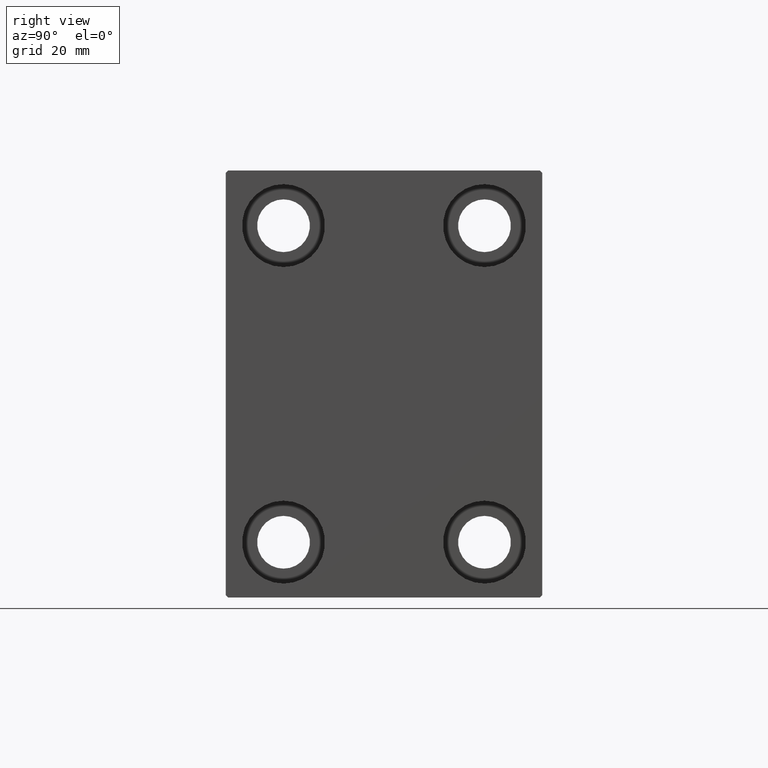
[diagram: clean part render]
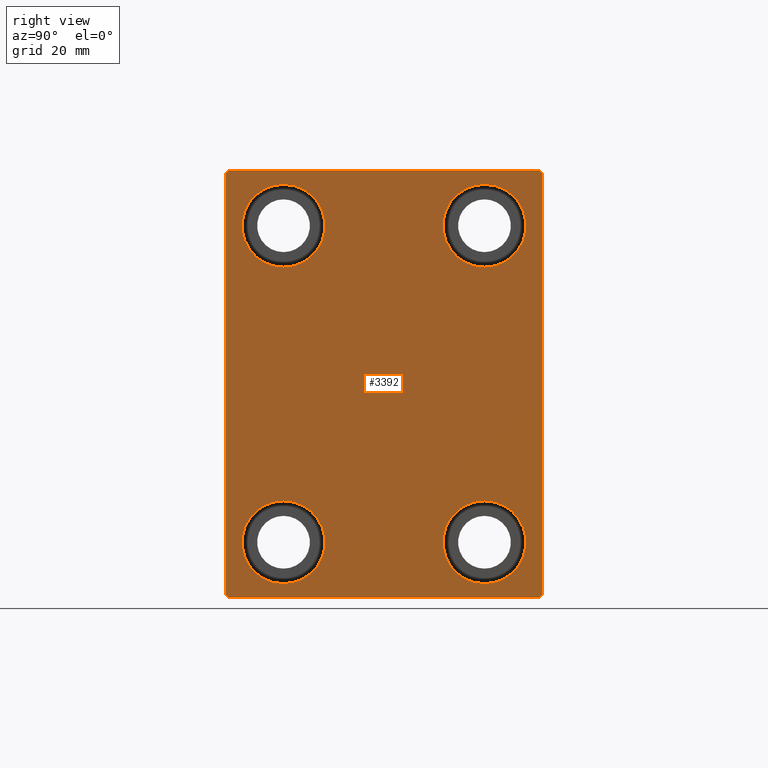
[diagram: same view with one face highlighted and labeled with its STEP entity id]
A machine part, right view. The second image highlights one B-rep face of the part: STEP entity #3392.
In plain terms, the highlighted planar face has unit normal (1, 0, 0).
Its self-contained STEP definition (entity closure, byte-faithful):
#448 = LINE ( 'NONE', #14216, #34488 ) ;
#698 = DIRECTION ( 'NONE',  ( 0.000000000000000000, 0.000000000000000000, 1.000000000000000000 ) ) ;
#2405 = ORIENTED_EDGE ( 'NONE', *, *, #10551, .T. ) ;
#2633 = EDGE_CURVE ( 'NONE', #10089, #28254, #25687, .T. ) ;
#3216 = LINE ( 'NONE', #33450, #33246 ) ;
#3392 = ADVANCED_FACE ( 'NONE', ( #31100, #14204, #27771, #11472, #25023 ), #38613, .T. ) ;
#4248 = DIRECTION ( 'NONE',  ( -1.000000000000000000, -0.000000000000000000, -0.000000000000000000 ) ) ;
#4383 = ORIENTED_EDGE ( 'NONE', *, *, #37779, .T. ) ;
#4405 = CARTESIAN_POINT ( 'NONE',  ( 88.00000000000000000, -19.99999999999999645, 23.25000000000000355 ) ) ;
#4708 = CIRCLE ( 'NONE', #40938, 8.250000000000000000 ) ;
#4810 = DIRECTION ( 'NONE',  ( 0.000000000000000000, 0.000000000000000000, -1.000000000000000000 ) ) ;
#5576 = EDGE_LOOP ( 'NONE', ( #43791, #18292 ) ) ;
#5767 = CARTESIAN_POINT ( 'NONE',  ( 88.00000000000000000, -31.50000000000000000, 41.99999999999999289 ) ) ;
#6165 = EDGE_CURVE ( 'NONE', #13668, #19297, #4708, .T. ) ;
#6616 = ORIENTED_EDGE ( 'NONE', *, *, #23569, .T. ) ;
#7251 = LINE ( 'NONE', #27262, #25664 ) ;
#7288 = CIRCLE ( 'NONE', #21461, 8.250000000000000000 ) ;
#7803 = VERTEX_POINT ( 'NONE', #14889 ) ;
#8357 = VECTOR ( 'NONE', #39115, 1000.000000000000000 ) ;
#8396 = CARTESIAN_POINT ( 'NONE',  ( 88.00000000000000000, 19.99999999999999645, -31.49999999999999289 ) ) ;
#8635 = DIRECTION ( 'NONE',  ( 0.000000000000000000, 0.000000000000000000, -1.000000000000000000 ) ) ;
#9168 = ORIENTED_EDGE ( 'NONE', *, *, #29551, .T. ) ;
#10033 = CARTESIAN_POINT ( 'NONE',  ( 88.00000000000000000, 19.99999999999999645, -23.24999999999999289 ) ) ;
#10089 = VERTEX_POINT ( 'NONE', #11914 ) ;
#10105 = DIRECTION ( 'NONE',  ( -0.000000000000000000, 0.7071067811865573427, -0.7071067811865378028 ) ) ;
#10325 = EDGE_CURVE ( 'NONE', #26020, #11963, #19568, .T. ) ;
#10328 = DIRECTION ( 'NONE',  ( 0.000000000000000000, 0.000000000000000000, 1.000000000000000000 ) ) ;
#10464 = EDGE_CURVE ( 'NONE', #24582, #36181, #448, .T. ) ;
#10551 = EDGE_CURVE ( 'NONE', #36181, #35749, #21765, .T. ) ;
#10630 = DIRECTION ( 'NONE',  ( 0.000000000000000000, 0.000000000000000000, 1.000000000000000000 ) ) ;
#10774 = CIRCLE ( 'NONE', #37019, 8.249999999999992895 ) ;
#11472 = FACE_BOUND ( 'NONE', #5576, .T. ) ;
#11722 = DIRECTION ( 'NONE',  ( -1.000000000000000000, -0.000000000000000000, -0.000000000000000000 ) ) ;
#11781 = VERTEX_POINT ( 'NONE', #41972 ) ;
#11914 = CARTESIAN_POINT ( 'NONE',  ( 88.00000000000000000, -31.00000000000000000, -42.50000000000000711 ) ) ;
#11963 = VERTEX_POINT ( 'NONE', #15430 ) ;
#12589 = ORIENTED_EDGE ( 'NONE', *, *, #2633, .T. ) ;
#12839 = AXIS2_PLACEMENT_3D ( 'NONE', #31141, #4248, #698 ) ;
#12922 = DIRECTION ( 'NONE',  ( -1.000000000000000000, -0.000000000000000000, -0.000000000000000000 ) ) ;
#13192 = VECTOR ( 'NONE', #35323, 1000.000000000000000 ) ;
#13668 = VERTEX_POINT ( 'NONE', #27906 ) ;
#13960 = DIRECTION ( 'NONE',  ( -1.000000000000000000, -0.000000000000000000, -0.000000000000000000 ) ) ;
#14077 = VERTEX_POINT ( 'NONE', #4405 ) ;
#14204 = FACE_BOUND ( 'NONE', #18291, .T. ) ;
#14216 = CARTESIAN_POINT ( 'NONE',  ( 88.00000000000000000, 31.50000000000000000, 42.50000000000000711 ) ) ;
#14383 = AXIS2_PLACEMENT_3D ( 'NONE', #33154, #12922, #26496 ) ;
#14624 = AXIS2_PLACEMENT_3D ( 'NONE', #33349, #29578, #40047 ) ;
#14889 = CARTESIAN_POINT ( 'NONE',  ( 88.00000000000000000, -20.00000000000000355, -39.74999999999999289 ) ) ;
#15050 = DIRECTION ( 'NONE',  ( 0.000000000000000000, 0.000000000000000000, 1.000000000000000000 ) ) ;
#15430 = CARTESIAN_POINT ( 'NONE',  ( 88.00000000000000000, 20.00000000000000355, 39.74999999999999289 ) ) ;
#15628 = DIRECTION ( 'NONE',  ( -1.000000000000000000, -0.000000000000000000, -0.000000000000000000 ) ) ;
#15633 = EDGE_CURVE ( 'NONE', #42857, #33414, #39559, .T. ) ;
#16173 = CARTESIAN_POINT ( 'NONE',  ( 88.00000000000000000, 31.50000000000001421, -42.50000000000000711 ) ) ;
#16819 = EDGE_CURVE ( 'NONE', #22340, #10089, #3216, .T. ) ;
#16854 = DIRECTION ( 'NONE',  ( -0.000000000000000000, 0.7071067811865378028, 0.7071067811865573427 ) ) ;
#17936 = CIRCLE ( 'NONE', #14383, 8.250000000000000000 ) ;
#18120 = VECTOR ( 'NONE', #32135, 1000.000000000000000 ) ;
#18180 = CARTESIAN_POINT ( 'NONE',  ( 88.00000000000000000, -31.50000000000000000, 42.49999999999999289 ) ) ;
#18291 = EDGE_LOOP ( 'NONE', ( #9168, #43781 ) ) ;
#18292 = ORIENTED_EDGE ( 'NONE', *, *, #25979, .T. ) ;
#18426 = CARTESIAN_POINT ( 'NONE',  ( 88.00000000000000000, -36.75000000000044054, 36.74999999999942446 ) ) ;
#19224 = ORIENTED_EDGE ( 'NONE', *, *, #32085, .T. ) ;
#19297 = VERTEX_POINT ( 'NONE', #10033 ) ;
#19568 = CIRCLE ( 'NONE', #14624, 8.249999999999992895 ) ;
#20528 = ORIENTED_EDGE ( 'NONE', *, *, #15633, .T. ) ;
#20909 = DIRECTION ( 'NONE',  ( 0.000000000000000000, 0.000000000000000000, 1.000000000000000000 ) ) ;
#21461 = AXIS2_PLACEMENT_3D ( 'NONE', #8396, #11722, #15050 ) ;
#21571 = EDGE_LOOP ( 'NONE', ( #29669, #4383 ) ) ;
#21694 = CARTESIAN_POINT ( 'NONE',  ( 88.00000000000000000, 0.000000000000000000, 0.000000000000000000 ) ) ;
#21704 = ORIENTED_EDGE ( 'NONE', *, *, #10464, .T. ) ;
#21765 = LINE ( 'NONE', #18426, #13192 ) ;
#21927 = VECTOR ( 'NONE', #16854, 1000.000000000000000 ) ;
#21936 = CARTESIAN_POINT ( 'NONE',  ( 88.00000000000000000, 31.50000000000001421, -42.00000000000000711 ) ) ;
#22340 = VERTEX_POINT ( 'NONE', #40502 ) ;
#22450 = ORIENTED_EDGE ( 'NONE', *, *, #29621, .T. ) ;
#23168 = DIRECTION ( 'NONE',  ( 0.000000000000000000, 0.000000000000000000, 1.000000000000000000 ) ) ;
#23457 = EDGE_LOOP ( 'NONE', ( #26643, #22450 ) ) ;
#23569 = EDGE_CURVE ( 'NONE', #28254, #42857, #37771, .T. ) ;
#24107 = DIRECTION ( 'NONE',  ( -1.000000000000000000, -0.000000000000000000, -0.000000000000000000 ) ) ;
#24582 = VERTEX_POINT ( 'NONE', #37408 ) ;
#24687 = DIRECTION ( 'NONE',  ( -1.000000000000000000, -0.000000000000000000, -0.000000000000000000 ) ) ;
#25023 = FACE_OUTER_BOUND ( 'NONE', #32385, .T. ) ;
#25664 = VECTOR ( 'NONE', #30374, 1000.000000000000114 ) ;
#25687 = LINE ( 'NONE', #35697, #18120 ) ;
#25979 = EDGE_CURVE ( 'NONE', #31950, #7803, #44004, .T. ) ;
#26020 = VERTEX_POINT ( 'NONE', #29928 ) ;
#26076 = CARTESIAN_POINT ( 'NONE',  ( 88.00000000000000000, 31.50000000000000000, 41.99999999999999289 ) ) ;
#26496 = DIRECTION ( 'NONE',  ( 0.000000000000000000, 0.000000000000000000, 1.000000000000000000 ) ) ;
#26643 = ORIENTED_EDGE ( 'NONE', *, *, #10325, .T. ) ;
#27262 = CARTESIAN_POINT ( 'NONE',  ( 88.00000000000000000, 36.74999999999999289, 36.74999999999999289 ) ) ;
#27446 = CARTESIAN_POINT ( 'NONE',  ( 88.00000000000000000, 19.99999999999999645, -31.49999999999999289 ) ) ;
#27731 = AXIS2_PLACEMENT_3D ( 'NONE', #28027, #24687, #20909 ) ;
#27771 = FACE_BOUND ( 'NONE', #23457, .T. ) ;
#27906 = CARTESIAN_POINT ( 'NONE',  ( 88.00000000000000000, 19.99999999999999645, -39.74999999999999289 ) ) ;
#28027 = CARTESIAN_POINT ( 'NONE',  ( 88.00000000000000000, -19.99999999999999645, 31.50000000000000000 ) ) ;
#28254 = VERTEX_POINT ( 'NONE', #41908 ) ;
#28459 = CIRCLE ( 'NONE', #12839, 8.249999999999992895 ) ;
#28830 = CARTESIAN_POINT ( 'NONE',  ( 88.00000000000000000, -31.00000000000001421, 42.49999999999999289 ) ) ;
#29551 = EDGE_CURVE ( 'NONE', #14077, #11781, #43395, .T. ) ;
#29578 = DIRECTION ( 'NONE',  ( -1.000000000000000000, -0.000000000000000000, -0.000000000000000000 ) ) ;
#29621 = EDGE_CURVE ( 'NONE', #11963, #26020, #28459, .T. ) ;
#29669 = ORIENTED_EDGE ( 'NONE', *, *, #6165, .T. ) ;
#29928 = CARTESIAN_POINT ( 'NONE',  ( 88.00000000000000000, 20.00000000000000355, 23.25000000000000355 ) ) ;
#30051 = EDGE_CURVE ( 'NONE', #35749, #22340, #31750, .T. ) ;
#30374 = DIRECTION ( 'NONE',  ( -0.000000000000000000, -0.7071067811865474617, 0.7071067811865474617 ) ) ;
#30913 = AXIS2_PLACEMENT_3D ( 'NONE', #21694, #35258, #4810 ) ;
#31100 = FACE_BOUND ( 'NONE', #21571, .T. ) ;
#31141 = CARTESIAN_POINT ( 'NONE',  ( 88.00000000000000000, 20.00000000000000355, 31.50000000000000000 ) ) ;
#31656 = EDGE_CURVE ( 'NONE', #11781, #14077, #10774, .T. ) ;
#31750 = LINE ( 'NONE', #18180, #32038 ) ;
#31950 = VERTEX_POINT ( 'NONE', #35811 ) ;
#32038 = VECTOR ( 'NONE', #8635, 1000.000000000000000 ) ;
#32085 = EDGE_CURVE ( 'NONE', #33414, #24582, #7251, .T. ) ;
#32135 = DIRECTION ( 'NONE',  ( 0.000000000000000000, 1.000000000000000000, 0.000000000000000000 ) ) ;
#32385 = EDGE_LOOP ( 'NONE', ( #21704, #2405, #41093, #32934, #12589, #6616, #20528, #19224 ) ) ;
#32934 = ORIENTED_EDGE ( 'NONE', *, *, #16819, .T. ) ;
#33154 = CARTESIAN_POINT ( 'NONE',  ( 88.00000000000000000, -20.00000000000000355, -31.49999999999999289 ) ) ;
#33246 = VECTOR ( 'NONE', #10105, 1000.000000000000000 ) ;
#33322 = CARTESIAN_POINT ( 'NONE',  ( 88.00000000000000000, 36.75000000000045475, -36.74999999999943867 ) ) ;
#33349 = CARTESIAN_POINT ( 'NONE',  ( 88.00000000000000000, 20.00000000000000355, 31.50000000000000000 ) ) ;
#33414 = VERTEX_POINT ( 'NONE', #26076 ) ;
#33450 = CARTESIAN_POINT ( 'NONE',  ( 88.00000000000000000, -36.74999999999958078, -36.75000000000059686 ) ) ;
#34488 = VECTOR ( 'NONE', #41368, 1000.000000000000000 ) ;
#35258 = DIRECTION ( 'NONE',  ( 1.000000000000000000, 0.000000000000000000, 0.000000000000000000 ) ) ;
#35323 = DIRECTION ( 'NONE',  ( 0.000000000000000000, -0.7071067811865378028, -0.7071067811865573427 ) ) ;
#35697 = CARTESIAN_POINT ( 'NONE',  ( 88.00000000000000000, -31.50000000000000000, -42.50000000000000711 ) ) ;
#35749 = VERTEX_POINT ( 'NONE', #5767 ) ;
#35811 = CARTESIAN_POINT ( 'NONE',  ( 88.00000000000000000, -20.00000000000000355, -23.24999999999999289 ) ) ;
#36181 = VERTEX_POINT ( 'NONE', #28830 ) ;
#36183 = AXIS2_PLACEMENT_3D ( 'NONE', #40889, #13960, #10630 ) ;
#37019 = AXIS2_PLACEMENT_3D ( 'NONE', #39880, #15628, #23168 ) ;
#37408 = CARTESIAN_POINT ( 'NONE',  ( 88.00000000000000000, 30.99999999999998579, 42.50000000000000711 ) ) ;
#37771 = LINE ( 'NONE', #33322, #21927 ) ;
#37779 = EDGE_CURVE ( 'NONE', #19297, #13668, #7288, .T. ) ;
#38613 = PLANE ( 'NONE',  #30913 ) ;
#39115 = DIRECTION ( 'NONE',  ( 0.000000000000000000, -1.632680918566406300E-16, 1.000000000000000000 ) ) ;
#39331 = EDGE_CURVE ( 'NONE', #7803, #31950, #17936, .T. ) ;
#39559 = LINE ( 'NONE', #16173, #8357 ) ;
#39880 = CARTESIAN_POINT ( 'NONE',  ( 88.00000000000000000, -19.99999999999999645, 31.50000000000000000 ) ) ;
#40047 = DIRECTION ( 'NONE',  ( 0.000000000000000000, 0.000000000000000000, 1.000000000000000000 ) ) ;
#40502 = CARTESIAN_POINT ( 'NONE',  ( 88.00000000000000000, -31.50000000000000000, -42.00000000000002132 ) ) ;
#40889 = CARTESIAN_POINT ( 'NONE',  ( 88.00000000000000000, -20.00000000000000355, -31.49999999999999289 ) ) ;
#40938 = AXIS2_PLACEMENT_3D ( 'NONE', #27446, #24107, #10328 ) ;
#41093 = ORIENTED_EDGE ( 'NONE', *, *, #30051, .T. ) ;
#41368 = DIRECTION ( 'NONE',  ( 0.000000000000000000, -1.000000000000000000, -2.202823461557850341E-16 ) ) ;
#41908 = CARTESIAN_POINT ( 'NONE',  ( 88.00000000000000000, 31.00000000000002842, -42.50000000000000711 ) ) ;
#41972 = CARTESIAN_POINT ( 'NONE',  ( 88.00000000000000000, -19.99999999999999645, 39.74999999999999289 ) ) ;
#42857 = VERTEX_POINT ( 'NONE', #21936 ) ;
#43395 = CIRCLE ( 'NONE', #27731, 8.249999999999992895 ) ;
#43781 = ORIENTED_EDGE ( 'NONE', *, *, #31656, .T. ) ;
#43791 = ORIENTED_EDGE ( 'NONE', *, *, #39331, .T. ) ;
#44004 = CIRCLE ( 'NONE', #36183, 8.250000000000000000 ) ;